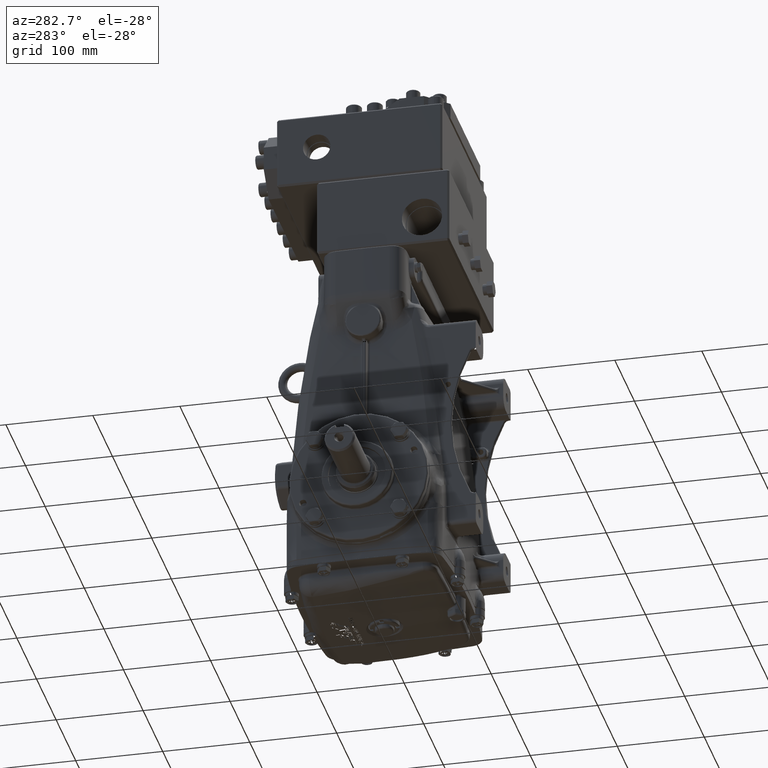
[diagram: clean part render]
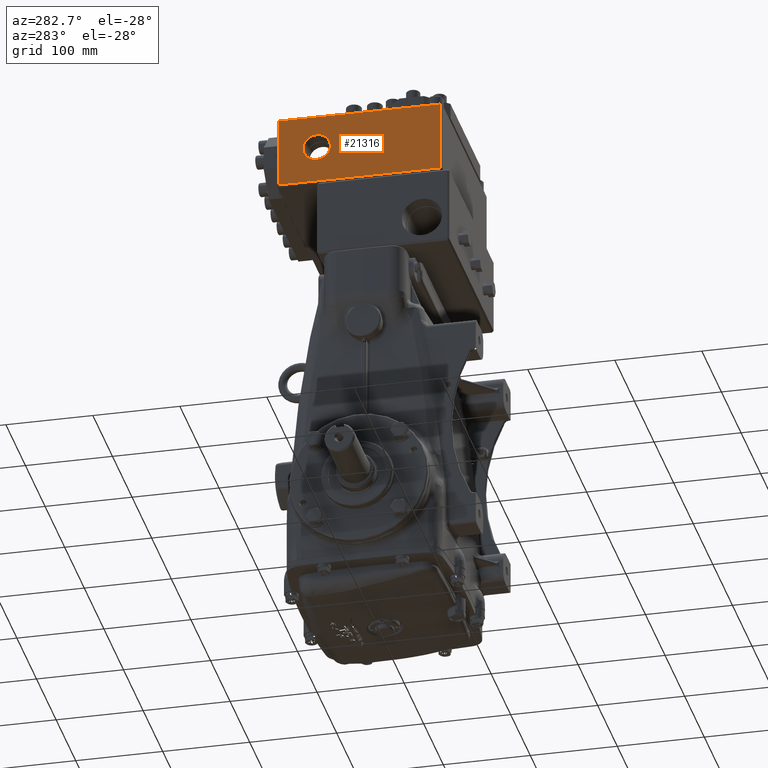
[diagram: same view with one face highlighted and labeled with its STEP entity id]
A machine part, auxiliary view. The second image highlights one B-rep face of the part: STEP entity #21316.
In plain terms, the highlighted planar face has unit normal (1, 0, 0).
Its self-contained STEP definition (entity closure, byte-faithful):
#260 = DIRECTION ( 'NONE',  ( 1.000000000000000000, 0.0000000000000000000, 0.0000000000000000000 ) ) ;
#4096 = DIRECTION ( 'NONE',  ( 0.0000000000000000000, 0.0000000000000000000, -1.000000000000000000 ) ) ;
#6322 = ORIENTED_EDGE ( 'NONE', *, *, #31607, .T. ) ;
#9140 = DIRECTION ( 'NONE',  ( 0.0000000000000000000, 1.000000000000000000, 0.0000000000000000000 ) ) ;
#9222 = FACE_BOUND ( 'NONE', #33029, .T. ) ;
#9526 = DIRECTION ( 'NONE',  ( 0.0000000000000000000, -1.000000000000000000, 0.0000000000000000000 ) ) ;
#10385 = EDGE_CURVE ( 'NONE', #33218, #88892, #49096, .T. ) ;
#12414 = DIRECTION ( 'NONE',  ( 0.0000000000000000000, 0.0000000000000000000, 1.000000000000000000 ) ) ;
#12870 = CARTESIAN_POINT ( 'NONE',  ( -4.527559055118109299, 2.047244094488190669, 17.70592917322834836 ) ) ;
#21316 = ADVANCED_FACE ( 'NONE', ( #91033, #9222 ), #45572, .F. ) ;
#22172 = AXIS2_PLACEMENT_3D ( 'NONE', #82018, #260, #36600 ) ;
#22345 = EDGE_CURVE ( 'NONE', #92022, #59420, #49403, .T. ) ;
#23206 = EDGE_CURVE ( 'NONE', #59420, #40050, #54870, .T. ) ;
#28814 = DIRECTION ( 'NONE',  ( 0.0000000000000000000, 0.0000000000000000000, 1.000000000000000000 ) ) ;
#31607 = EDGE_CURVE ( 'NONE', #40050, #108170, #32046, .T. ) ;
#32046 = LINE ( 'NONE', #68469, #49691 ) ;
#33029 = EDGE_LOOP ( 'NONE', ( #41951, #98284 ) ) ;
#33218 = VERTEX_POINT ( 'NONE', #12870 ) ;
#35334 = ORIENTED_EDGE ( 'NONE', *, *, #22345, .T. ) ;
#36600 = DIRECTION ( 'NONE',  ( 0.0000000000000000000, 0.0000000000000000000, -1.000000000000000000 ) ) ;
#36626 = ORIENTED_EDGE ( 'NONE', *, *, #23206, .T. ) ;
#40050 = VERTEX_POINT ( 'NONE', #91522 ) ;
#41951 = ORIENTED_EDGE ( 'NONE', *, *, #10385, .F. ) ;
#45572 = PLANE ( 'NONE',  #22172 ) ;
#49096 = CIRCLE ( 'NONE', #115856, 0.6193150000000003930 ) ;
#49403 = LINE ( 'NONE', #85862, #85229 ) ;
#49691 = VECTOR ( 'NONE', #104949, 39.37007874015748143 ) ;
#50509 = CIRCLE ( 'NONE', #117268, 0.6193150000000003930 ) ;
#53573 = CARTESIAN_POINT ( 'NONE',  ( -4.527559055118109299, -3.543307086614170487, 18.58267716535433323 ) ) ;
#54460 = LINE ( 'NONE', #90943, #59747 ) ;
#54870 = LINE ( 'NONE', #91342, #88903 ) ;
#57721 = CARTESIAN_POINT ( 'NONE',  ( -4.527559055118109299, 2.047244094488190669, 17.08661417322834808 ) ) ;
#59420 = VERTEX_POINT ( 'NONE', #68168 ) ;
#59747 = VECTOR ( 'NONE', #9140, 39.37007874015748143 ) ;
#68168 = CARTESIAN_POINT ( 'NONE',  ( -4.527559055118109299, 3.779527559055120278, 15.39370078740157766 ) ) ;
#68469 = CARTESIAN_POINT ( 'NONE',  ( -4.527559055118109299, -3.543307086614170487, 18.66141732283464805 ) ) ;
#69656 = EDGE_CURVE ( 'NONE', #88892, #33218, #50509, .T. ) ;
#74211 = CARTESIAN_POINT ( 'NONE',  ( -4.527559055118109299, 2.047244094488190669, 17.08661417322834808 ) ) ;
#81354 = CARTESIAN_POINT ( 'NONE',  ( -4.527559055118109299, 2.047244094488190669, 16.46729917322834780 ) ) ;
#82018 = CARTESIAN_POINT ( 'NONE',  ( -4.527559055118109299, -3.622047244094486196, 18.66141732283464805 ) ) ;
#85229 = VECTOR ( 'NONE', #4096, 39.37007874015748143 ) ;
#85862 = CARTESIAN_POINT ( 'NONE',  ( -4.527559055118109299, 3.779527559055120278, 18.66141732283464805 ) ) ;
#86782 = ORIENTED_EDGE ( 'NONE', *, *, #102527, .T. ) ;
#88892 = VERTEX_POINT ( 'NONE', #81354 ) ;
#88903 = VECTOR ( 'NONE', #9526, 39.37007874015748143 ) ;
#90279 = CARTESIAN_POINT ( 'NONE',  ( -4.527559055118109299, 3.779527559055120278, 18.58267716535433323 ) ) ;
#90943 = CARTESIAN_POINT ( 'NONE',  ( -4.527559055118109299, -3.622047244094486196, 18.58267716535433323 ) ) ;
#91033 = FACE_OUTER_BOUND ( 'NONE', #115575, .T. ) ;
#91342 = CARTESIAN_POINT ( 'NONE',  ( -4.527559055118109299, -3.622047244094486196, 15.39370078740157766 ) ) ;
#91522 = CARTESIAN_POINT ( 'NONE',  ( -4.527559055118109299, -3.543307086614170487, 15.39370078740157766 ) ) ;
#92022 = VERTEX_POINT ( 'NONE', #90279 ) ;
#94231 = DIRECTION ( 'NONE',  ( -1.000000000000000000, -0.0000000000000000000, -0.0000000000000000000 ) ) ;
#98284 = ORIENTED_EDGE ( 'NONE', *, *, #69656, .F. ) ;
#102527 = EDGE_CURVE ( 'NONE', #108170, #92022, #54460, .T. ) ;
#104949 = DIRECTION ( 'NONE',  ( 0.0000000000000000000, 0.0000000000000000000, 1.000000000000000000 ) ) ;
#108170 = VERTEX_POINT ( 'NONE', #53573 ) ;
#110636 = DIRECTION ( 'NONE',  ( -1.000000000000000000, -0.0000000000000000000, -0.0000000000000000000 ) ) ;
#115575 = EDGE_LOOP ( 'NONE', ( #36626, #6322, #86782, #35334 ) ) ;
#115856 = AXIS2_PLACEMENT_3D ( 'NONE', #57721, #94231, #12414 ) ;
#117268 = AXIS2_PLACEMENT_3D ( 'NONE', #74211, #110636, #28814 ) ;